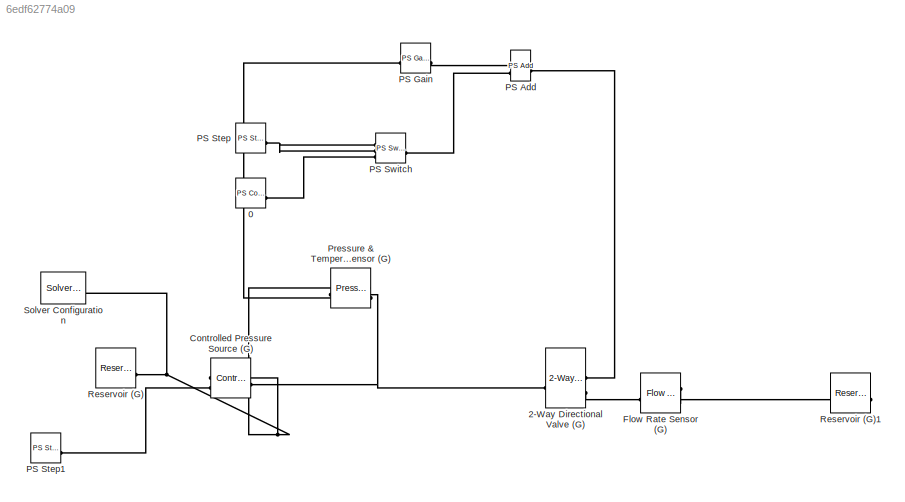
MODEL slx_6edf62774a09
KIND model
CONFIG AbsTol = 1e-3
CONFIG EnableMultiTasking = off
CONFIG FixedStep = auto
CONFIG MaxStep = auto
CONFIG MinStep = auto
CONFIG RelTol = 1e-3
CONFIG SampleTimeConstraint = Unconstrained
CONFIG SolverName = VariableStepAuto
CONFIG StartTime = 0.0
CONFIG StopTime = 4
BLOCK [Reference] 0  REF=fl_lib/Physical Signals/Sources/PS Constant
  SourceBlock = fl_lib/Physical Signals/Sources/PS Constant
  SourceType = PS Constant
BLOCK [Reference] 2-Way Directional Valve (G)  REF=SimscapeFluids_lib/Gas/Valves & Orifices/Directional Control
Valves/2-Way Directional
Valve (G)
  NameLocation = top
  SourceBlock = SimscapeFluids_lib/Gas/Valves & Orifices/Directional Control\nValves/2-Way Directional\nValve (G)
  SourceType = 2-Way Directional\nValve (G)
BLOCK [Reference] Controlled Pressure Source (G)  REF=fl_lib/Gas/Sources/Controlled Pressure
Source (G)
  SourceBlock = fl_lib/Gas/Sources/Controlled Pressure\nSource (G)
  SourceType = Controlled Pressure\nSource (G)
BLOCK [Reference] Flow Rate Sensor (G)  REF=fl_lib/Gas/Sensors/Flow Rate Sensor (G)
  SourceBlock = fl_lib/Gas/Sensors/Flow Rate Sensor (G)
  SourceType = Flow Rate Sensor (G)
BLOCK [Reference] PS Add  REF=fl_lib/Physical Signals/Functions/PS Add
  SourceBlock = fl_lib/Physical Signals/Functions/PS Add
  SourceType = PS Add
BLOCK [Reference] PS Gain  REF=fl_lib/Physical Signals/Functions/PS Gain
  SourceBlock = fl_lib/Physical Signals/Functions/PS Gain
  SourceType = PS Gain
BLOCK [Reference] PS Step  REF=fl_lib/Physical Signals/Sources/PS Step
  SourceBlock = fl_lib/Physical Signals/Sources/PS Step
  SourceType = PS Step
BLOCK [Reference] PS Step1  REF=fl_lib/Physical Signals/Sources/PS Step
  SourceBlock = fl_lib/Physical Signals/Sources/PS Step
  SourceType = PS Step
BLOCK [Reference] PS Switch  REF=fl_lib/Physical Signals/Nonlinear Operators/PS Switch
  SourceBlock = fl_lib/Physical Signals/Nonlinear Operators/PS Switch
  SourceType = PS Switch
BLOCK [Reference] Pressure & Temperature Sensor (G)  REF=fl_lib/Gas/Sensors/Pressure &
Temperature Sensor
(G)
  NameLocation = top
  SourceBlock = fl_lib/Gas/Sensors/Pressure &\nTemperature Sensor\n(G)
  SourceType = Pressure &\nTemperature Sensor\n(G)
BLOCK [Reference] Reservoir (G)  REF=fl_lib/Gas/Elements/Reservoir (G)
  SourceBlock = fl_lib/Gas/Elements/Reservoir (G)
  SourceType = Reservoir (G)
BLOCK [Reference] Reservoir (G)1  REF=fl_lib/Gas/Elements/Reservoir (G)
  NameLocation = top
  SourceBlock = fl_lib/Gas/Elements/Reservoir (G)
  SourceType = Reservoir (G)
BLOCK [Reference] Solver Configuration  REF=nesl_utility/Solver
Configuration
  SourceBlock = nesl_utility/Solver\nConfiguration
  SourceType = Solver\nConfiguration
PLINE 0:RConn1 -- PS Switch:LConn3
PNET net1: 2-Way Directional Valve (G):LConn1 -- Controlled Pressure Source (G):RConn1 -- Pressure & Temperature Sensor (G):LConn1
PLINE 2-Way Directional Valve (G):RConn1 -- PS Add:RConn1
PLINE 2-Way Directional Valve (G):RConn2 -- Flow Rate Sensor (G):LConn1
PNET net2: Controlled Pressure Source (G):LConn1 -- Pressure & Temperature Sensor (G):RConn1 -- Reservoir (G):LConn1 -- Solver Configuration:RConn1
PLINE Controlled Pressure Source (G):LConn2 -- PS Step1:RConn1
PLINE Flow Rate Sensor (G):RConn1 -- Reservoir (G)1:LConn1
PLINE PS Add:LConn1 -- PS Gain:RConn1
PLINE PS Add:LConn2 -- PS Switch:RConn1
PLINE PS Gain:LConn1 -- Pressure & Temperature Sensor (G):RConn2
PNET net3: PS Step:RConn1 -- PS Switch:LConn1 -- PS Switch:LConn2
note: PNET lines group multi-terminal physical nets as a canonical sorted terminal list (undirected conserving connections); 2-terminal nets keep the pairwise PLINE form
